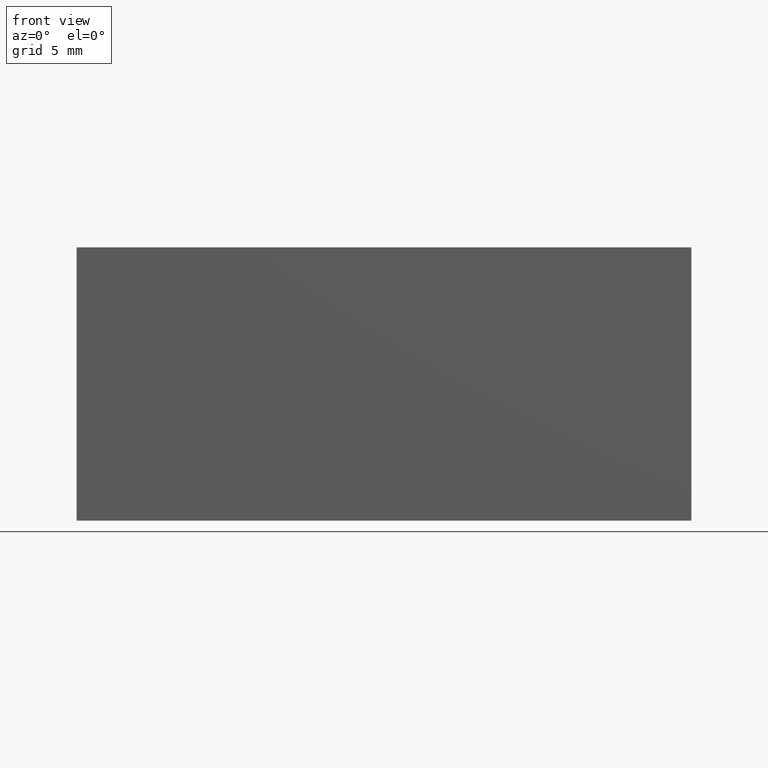
[diagram: clean part render]
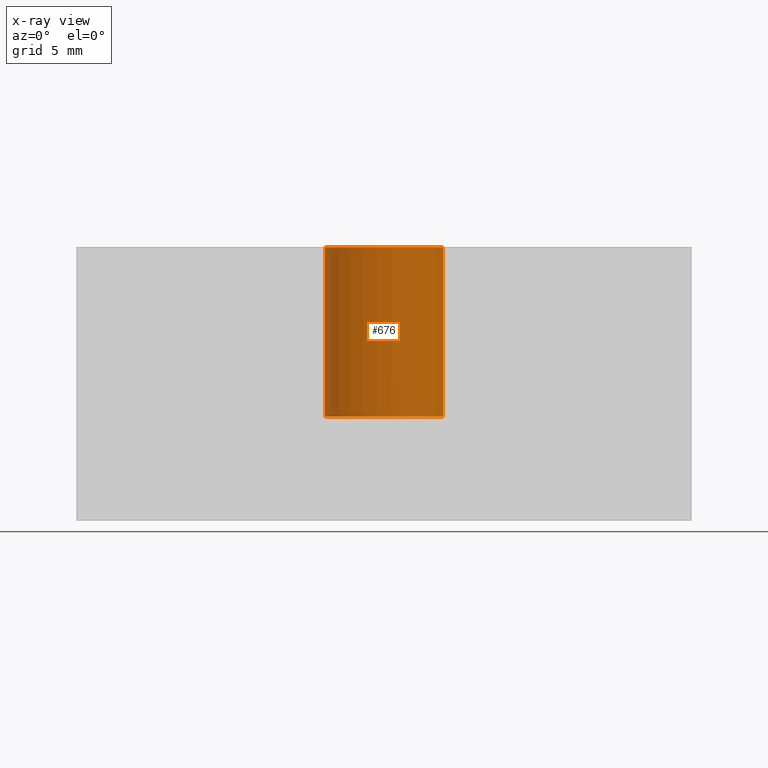
[diagram: x-ray — body ghosted, one internal face saturated and labeled with its STEP entity id]
A machine part, front view, then the same camera in x-ray: the body is ghosted and one INTERNAL B-rep face — a face not visible from any outside direction — is saturated and labeled: STEP entity #676.
In plain terms, the highlighted cylindrical surface (bore or boss wall) has radius 4.33 mm, axis along (0, 0, 1).
Its self-contained STEP definition (entity closure, byte-faithful):
#82=FACE_OUTER_BOUND('',#119,.T.);
#119=EDGE_LOOP('',(#469,#470,#471,#472,#473,#474));
#161=LINE('',#1078,#211);
#211=VECTOR('',#866,4.33);
#261=CIRCLE('',#777,4.33);
#262=CIRCLE('',#778,4.33);
#263=CIRCLE('',#779,4.33);
#264=CIRCLE('',#780,4.33);
#299=VERTEX_POINT('',#1073);
#300=VERTEX_POINT('',#1074);
#301=VERTEX_POINT('',#1077);
#302=VERTEX_POINT('',#1079);
#369=EDGE_CURVE('',#299,#300,#261,.T.);
#370=EDGE_CURVE('',#300,#299,#262,.T.);
#371=EDGE_CURVE('',#300,#301,#161,.T.);
#372=EDGE_CURVE('',#302,#301,#263,.T.);
#373=EDGE_CURVE('',#301,#302,#264,.T.);
#469=ORIENTED_EDGE('',*,*,#369,.F.);
#470=ORIENTED_EDGE('',*,*,#370,.F.);
#471=ORIENTED_EDGE('',*,*,#371,.T.);
#472=ORIENTED_EDGE('',*,*,#372,.F.);
#473=ORIENTED_EDGE('',*,*,#373,.F.);
#474=ORIENTED_EDGE('',*,*,#371,.F.);
#669=CYLINDRICAL_SURFACE('',#776,4.33);
#676=ADVANCED_FACE('',(#82),#669,.F.);
#776=AXIS2_PLACEMENT_3D('',#1072,#860,#861);
#777=AXIS2_PLACEMENT_3D('',#1075,#862,#863);
#778=AXIS2_PLACEMENT_3D('',#1076,#864,#865);
#779=AXIS2_PLACEMENT_3D('',#1080,#867,#868);
#780=AXIS2_PLACEMENT_3D('',#1081,#869,#870);
#860=DIRECTION('center_axis',(0.,0.,1.));
#861=DIRECTION('ref_axis',(1.,0.,0.));
#862=DIRECTION('center_axis',(0.,0.,-1.));
#863=DIRECTION('ref_axis',(1.,0.,0.));
#864=DIRECTION('center_axis',(0.,0.,-1.));
#865=DIRECTION('ref_axis',(1.,0.,0.));
#866=DIRECTION('',(0.,0.,-1.));
#867=DIRECTION('center_axis',(0.,0.,1.));
#868=DIRECTION('ref_axis',(1.,0.,0.));
#869=DIRECTION('center_axis',(0.,0.,1.));
#870=DIRECTION('ref_axis',(1.,0.,0.));
#1072=CARTESIAN_POINT('Origin',(0.,10.5,3.8));
#1073=CARTESIAN_POINT('',(4.33,10.5,10.));
#1074=CARTESIAN_POINT('',(-4.33,10.5,10.));
#1075=CARTESIAN_POINT('Origin',(0.,10.5,10.));
#1076=CARTESIAN_POINT('Origin',(0.,10.5,10.));
#1077=CARTESIAN_POINT('',(-4.33,10.5,-2.4));
#1078=CARTESIAN_POINT('',(-4.33,10.5,3.8));
#1079=CARTESIAN_POINT('',(4.33,10.5,-2.4));
#1080=CARTESIAN_POINT('Origin',(0.,10.5,-2.4));
#1081=CARTESIAN_POINT('Origin',(0.,10.5,-2.4));